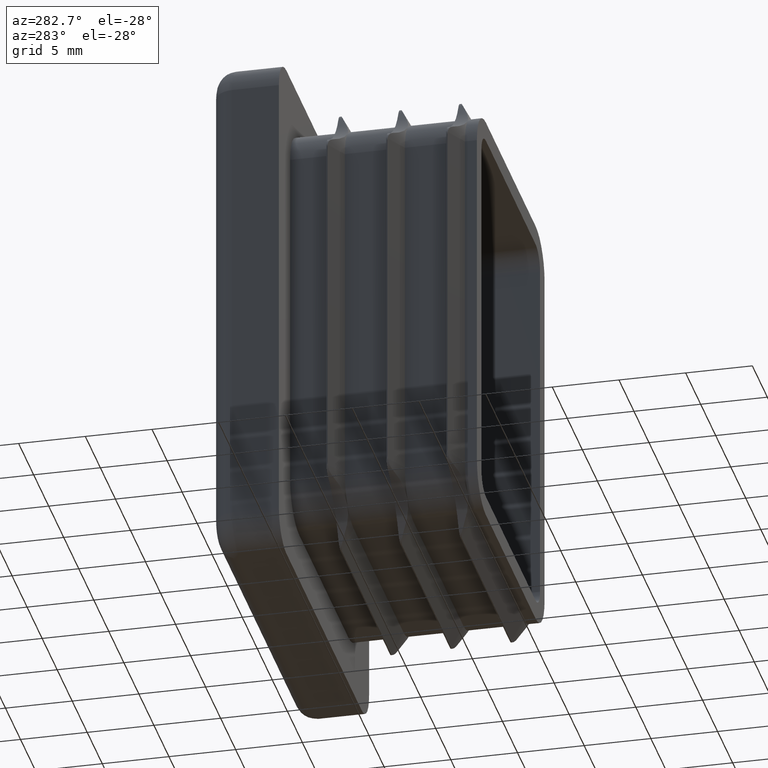
[diagram: clean part render]
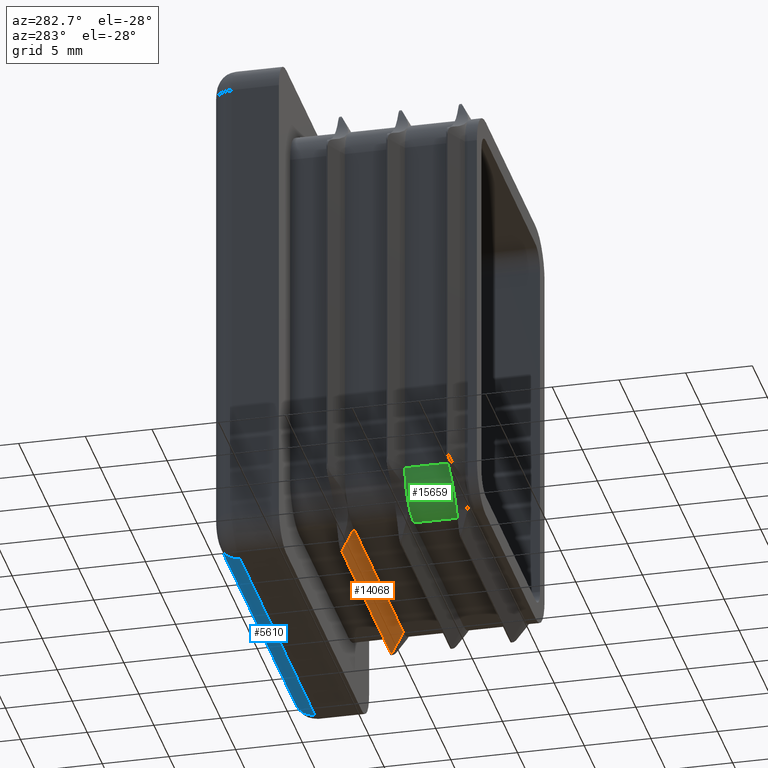
[diagram: same view with three faces highlighted in distinct colors, each labeled with its STEP entity id]
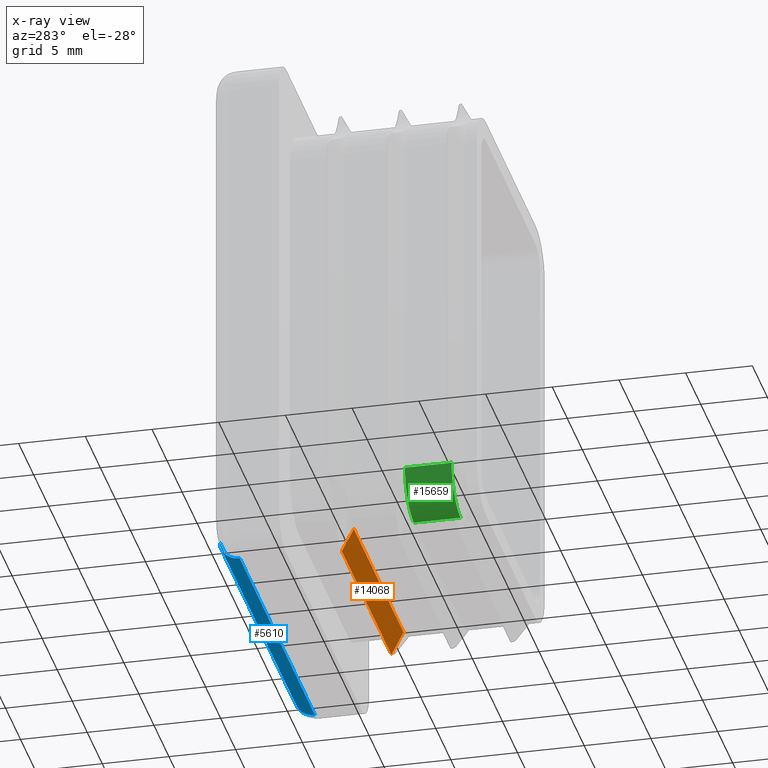
[diagram: x-ray of the same camera — body ghosted, the three highlighted faces saturated]
A machine part, auxiliary view with three faces highlighted in distinct colors.
The next image is the same camera in x-ray (body ghosted, the three faces saturated) — at least one of them is partly hidden behind the body in this view.
Their STEP definitions:

[orange] entity #14068 — the highlighted planar face has unit normal (0, 0.8852, 0.4652).
#296 = EDGE_CURVE ( 'NONE', #796, #19475, #1617, .T. ) ;
#754 = CARTESIAN_POINT ( 'NONE',  ( 8.250000000000003553, -4.100000000000000533, -16.24999999999999289 ) ) ;
#796 = VERTEX_POINT ( 'NONE', #10018 ) ;
#910 = DIRECTION ( 'NONE',  ( -1.000000000000000000, 0.000000000000000000, 0.000000000000000000 ) ) ;
#1617 = LINE ( 'NONE', #10877, #19602 ) ;
#1717 = LINE ( 'NONE', #7609, #19159 ) ;
#2319 = ORIENTED_EDGE ( 'NONE', *, *, #6359, .T. ) ;
#3541 = EDGE_CURVE ( 'NONE', #16539, #796, #1717, .T. ) ;
#3570 = VECTOR ( 'NONE', #15496, 1000.000000000000114 ) ;
#5968 = LINE ( 'NONE', #754, #21711 ) ;
#6359 = EDGE_CURVE ( 'NONE', #21801, #19475, #14787, .T. ) ;
#7219 = AXIS2_PLACEMENT_3D ( 'NONE', #19269, #10606, #19336 ) ;
#7609 = CARTESIAN_POINT ( 'NONE',  ( 8.250000000000003553, -3.194259021710857738, -17.97326239448548080 ) ) ;
#10018 = CARTESIAN_POINT ( 'NONE',  ( 8.250000000000003553, -3.194259021710856850, -17.97326239448548080 ) ) ;
#10325 = EDGE_CURVE ( 'NONE', #16539, #21801, #5968, .T. ) ;
#10548 = CARTESIAN_POINT ( 'NONE',  ( -8.249999999999992895, -4.100000000000000533, -16.24999999999999289 ) ) ;
#10606 = DIRECTION ( 'NONE',  ( 0.000000000000000000, 0.8851804342171145645, 0.4652478897095616572 ) ) ;
#10877 = CARTESIAN_POINT ( 'NONE',  ( 8.250000000000003553, -3.194259021710856850, -17.97326239448548080 ) ) ;
#12829 = CARTESIAN_POINT ( 'NONE',  ( -8.249999999999992895, -3.194259021710856850, -17.97326239448548080 ) ) ;
#13130 = ORIENTED_EDGE ( 'NONE', *, *, #10325, .T. ) ;
#13184 = EDGE_LOOP ( 'NONE', ( #22085, #18117, #13130, #2319 ) ) ;
#14068 = ADVANCED_FACE ( 'NONE', ( #19010 ), #15632, .F. ) ;
#14787 = LINE ( 'NONE', #15132, #3570 ) ;
#14918 = DIRECTION ( 'NONE',  ( -1.000000000000000000, 0.000000000000000000, 0.000000000000000000 ) ) ;
#15132 = CARTESIAN_POINT ( 'NONE',  ( -8.249999999999992895, -3.194259021710857738, -17.97326239448548080 ) ) ;
#15496 = DIRECTION ( 'NONE',  ( -2.897251471154287432E-16, 0.4652478897095616572, -0.8851804342171145645 ) ) ;
#15632 = PLANE ( 'NONE',  #7219 ) ;
#16539 = VERTEX_POINT ( 'NONE', #17673 ) ;
#17673 = CARTESIAN_POINT ( 'NONE',  ( 8.250000000000003553, -4.099999999999997868, -16.25000000000000000 ) ) ;
#18117 = ORIENTED_EDGE ( 'NONE', *, *, #3541, .F. ) ;
#19010 = FACE_OUTER_BOUND ( 'NONE', #13184, .T. ) ;
#19159 = VECTOR ( 'NONE', #21990, 1000.000000000000114 ) ;
#19269 = CARTESIAN_POINT ( 'NONE',  ( 8.250000000000003553, -3.194259021710857738, -17.97326239448548080 ) ) ;
#19336 = DIRECTION ( 'NONE',  ( 0.000000000000000000, -0.4652478897095616572, 0.8851804342171145645 ) ) ;
#19475 = VERTEX_POINT ( 'NONE', #12829 ) ;
#19602 = VECTOR ( 'NONE', #14918, 1000.000000000000000 ) ;
#21711 = VECTOR ( 'NONE', #910, 1000.000000000000000 ) ;
#21801 = VERTEX_POINT ( 'NONE', #10548 ) ;
#21990 = DIRECTION ( 'NONE',  ( -2.897251471154287432E-16, 0.4652478897095616572, -0.8851804342171145645 ) ) ;
#22085 = ORIENTED_EDGE ( 'NONE', *, *, #296, .F. ) ;

[blue] entity #5610 — the highlighted cylindrical surface (edge-blend (fillet) strip) has radius 1.5 mm, axis along (1, 0, 0).
#275 = DIRECTION ( 'NONE',  ( 0.000000000000000000, 0.000000000000000000, -1.000000000000000000 ) ) ;
#651 = EDGE_CURVE ( 'NONE', #7375, #3930, #12014, .T. ) ;
#853 = DIRECTION ( 'NONE',  ( -1.000000000000000000, 0.000000000000000000, 0.000000000000000000 ) ) ;
#1023 = AXIS2_PLACEMENT_3D ( 'NONE', #19678, #21355, #12792 ) ;
#1524 = EDGE_CURVE ( 'NONE', #8339, #3930, #18274, .T. ) ;
#3179 = ORIENTED_EDGE ( 'NONE', *, *, #19982, .F. ) ;
#3332 = CARTESIAN_POINT ( 'NONE',  ( 12.49999999999999289, 3.500000000000000000, -20.00000000000000355 ) ) ;
#3565 = LINE ( 'NONE', #20607, #4140 ) ;
#3590 = CIRCLE ( 'NONE', #19491, 1.500000000000001332 ) ;
#3930 = VERTEX_POINT ( 'NONE', #14220 ) ;
#4140 = VECTOR ( 'NONE', #15283, 1000.000000000000000 ) ;
#5610 = ADVANCED_FACE ( 'NONE', ( #10703 ), #16443, .T. ) ;
#7375 = VERTEX_POINT ( 'NONE', #12579 ) ;
#8088 = ORIENTED_EDGE ( 'NONE', *, *, #1524, .T. ) ;
#8339 = VERTEX_POINT ( 'NONE', #11618 ) ;
#8678 = AXIS2_PLACEMENT_3D ( 'NONE', #17307, #20779, #275 ) ;
#9759 = DIRECTION ( 'NONE',  ( 0.000000000000000000, 0.000000000000000000, -1.000000000000000000 ) ) ;
#10107 = VECTOR ( 'NONE', #853, 1000.000000000000000 ) ;
#10703 = FACE_OUTER_BOUND ( 'NONE', #21229, .T. ) ;
#11428 = CARTESIAN_POINT ( 'NONE',  ( 12.49999999999999289, 3.500000000000000000, -18.50000000000000355 ) ) ;
#11618 = CARTESIAN_POINT ( 'NONE',  ( -12.50000000000000178, 3.500000000000000000, -20.00000000000000355 ) ) ;
#12014 = LINE ( 'NONE', #21633, #10107 ) ;
#12579 = CARTESIAN_POINT ( 'NONE',  ( 12.49999999999999289, 5.000000000000000000, -18.50000000000000711 ) ) ;
#12792 = DIRECTION ( 'NONE',  ( 0.000000000000000000, 0.000000000000000000, -1.000000000000000000 ) ) ;
#13177 = DIRECTION ( 'NONE',  ( 1.000000000000000000, -0.000000000000000000, 0.000000000000000000 ) ) ;
#14220 = CARTESIAN_POINT ( 'NONE',  ( -12.50000000000000178, 5.000000000000000000, -18.50000000000000355 ) ) ;
#14639 = VERTEX_POINT ( 'NONE', #3332 ) ;
#15283 = DIRECTION ( 'NONE',  ( 1.000000000000000000, -0.000000000000000000, -0.000000000000000000 ) ) ;
#16443 = CYLINDRICAL_SURFACE ( 'NONE', #8678, 1.500000000000001332 ) ;
#17005 = ORIENTED_EDGE ( 'NONE', *, *, #20996, .F. ) ;
#17307 = CARTESIAN_POINT ( 'NONE',  ( 0.000000000000000000, 3.500000000000000000, -18.50000000000000355 ) ) ;
#18274 = CIRCLE ( 'NONE', #1023, 1.500000000000001332 ) ;
#18685 = ORIENTED_EDGE ( 'NONE', *, *, #651, .F. ) ;
#19491 = AXIS2_PLACEMENT_3D ( 'NONE', #11428, #13177, #9759 ) ;
#19678 = CARTESIAN_POINT ( 'NONE',  ( -12.50000000000000178, 3.500000000000000000, -18.50000000000000355 ) ) ;
#19982 = EDGE_CURVE ( 'NONE', #8339, #14639, #3565, .T. ) ;
#20607 = CARTESIAN_POINT ( 'NONE',  ( 12.49999999999999289, 3.500000000000000000, -20.00000000000000355 ) ) ;
#20779 = DIRECTION ( 'NONE',  ( 1.000000000000000000, 0.000000000000000000, 0.000000000000000000 ) ) ;
#20996 = EDGE_CURVE ( 'NONE', #14639, #7375, #3590, .T. ) ;
#21229 = EDGE_LOOP ( 'NONE', ( #8088, #18685, #17005, #3179 ) ) ;
#21355 = DIRECTION ( 'NONE',  ( 1.000000000000000000, 0.000000000000000000, 0.000000000000000000 ) ) ;
#21633 = CARTESIAN_POINT ( 'NONE',  ( -12.50000000000000178, 5.000000000000000000, -18.50000000000000355 ) ) ;

[green] entity #15659 — the highlighted cylindrical surface (partial cylindrical patch) has radius 3 mm, axis along (-0, 1, -0).
#55 = VECTOR ( 'NONE', #20944, 1000.000000000000000 ) ;
#71 = DIRECTION ( 'NONE',  ( 0.000000000000000000, 1.000000000000000000, 0.000000000000000000 ) ) ;
#2073 = AXIS2_PLACEMENT_3D ( 'NONE', #12360, #71, #19049 ) ;
#2372 = DIRECTION ( 'NONE',  ( -0.000000000000000000, 1.000000000000000000, -0.000000000000000000 ) ) ;
#2763 = LINE ( 'NONE', #3901, #5773 ) ;
#3008 = DIRECTION ( 'NONE',  ( 0.000000000000000000, 1.000000000000000000, 0.000000000000000000 ) ) ;
#3143 = DIRECTION ( 'NONE',  ( 0.000000000000000000, 0.000000000000000000, -1.000000000000000000 ) ) ;
#3790 = CIRCLE ( 'NONE', #8846, 3.000000000000040856 ) ;
#3901 = CARTESIAN_POINT ( 'NONE',  ( -11.24999999999999645, -14.00000000000000000, -13.25000000000000533 ) ) ;
#4015 = CARTESIAN_POINT ( 'NONE',  ( -8.249999999999994671, -14.00000000000000000, -13.25000000000000178 ) ) ;
#4172 = VERTEX_POINT ( 'NONE', #18264 ) ;
#4331 = ORIENTED_EDGE ( 'NONE', *, *, #7904, .F. ) ;
#4608 = AXIS2_PLACEMENT_3D ( 'NONE', #17236, #8352, #3143 ) ;
#4726 = VERTEX_POINT ( 'NONE', #19838 ) ;
#4954 = LINE ( 'NONE', #20576, #55 ) ;
#5378 = FACE_OUTER_BOUND ( 'NONE', #9181, .T. ) ;
#5773 = VECTOR ( 'NONE', #2372, 1000.000000000000000 ) ;
#6978 = AXIS2_PLACEMENT_3D ( 'NONE', #12605, #12696, #17871 ) ;
#7270 = VERTEX_POINT ( 'NONE', #10023 ) ;
#7383 = AXIS2_PLACEMENT_3D ( 'NONE', #4015, #17654, #12477 ) ;
#7904 = EDGE_CURVE ( 'NONE', #10443, #16292, #3790, .T. ) ;
#8352 = DIRECTION ( 'NONE',  ( 0.000000000000000000, 1.000000000000000000, 0.000000000000000000 ) ) ;
#8366 = ORIENTED_EDGE ( 'NONE', *, *, #17549, .F. ) ;
#8846 = AXIS2_PLACEMENT_3D ( 'NONE', #15345, #3008, #15207 ) ;
#9181 = EDGE_LOOP ( 'NONE', ( #8366, #4331, #21620, #21056, #17893, #12862 ) ) ;
#10023 = CARTESIAN_POINT ( 'NONE',  ( -11.24999999999999645, -8.600000000000020961, -13.25000000000000533 ) ) ;
#10443 = VERTEX_POINT ( 'NONE', #10654 ) ;
#10654 = CARTESIAN_POINT ( 'NONE',  ( -8.249999999999994671, -8.600000000000020961, -16.25000000000000000 ) ) ;
#11125 = VERTEX_POINT ( 'NONE', #21361 ) ;
#11460 = EDGE_CURVE ( 'NONE', #11125, #4172, #18466, .T. ) ;
#12360 = CARTESIAN_POINT ( 'NONE',  ( -8.249999999999992895, -12.10000000000000142, -13.25000000000000178 ) ) ;
#12477 = DIRECTION ( 'NONE',  ( 0.000000000000000000, 0.000000000000000000, 1.000000000000000000 ) ) ;
#12605 = CARTESIAN_POINT ( 'NONE',  ( -8.249999999999992895, -12.10000000000000142, -13.25000000000000178 ) ) ;
#12696 = DIRECTION ( 'NONE',  ( 0.000000000000000000, 1.000000000000000000, 0.000000000000000000 ) ) ;
#12862 = ORIENTED_EDGE ( 'NONE', *, *, #21967, .T. ) ;
#13296 = CARTESIAN_POINT ( 'NONE',  ( -10.37132034355964194, -8.600000000000017408, -15.37132034355964727 ) ) ;
#14098 = CYLINDRICAL_SURFACE ( 'NONE', #7383, 2.999999999999999112 ) ;
#14119 = EDGE_CURVE ( 'NONE', #4726, #11125, #18497, .T. ) ;
#15207 = DIRECTION ( 'NONE',  ( 0.000000000000000000, 0.000000000000000000, -1.000000000000000000 ) ) ;
#15345 = CARTESIAN_POINT ( 'NONE',  ( -8.249999999999992895, -8.599999999999999645, -13.25000000000000178 ) ) ;
#15659 = ADVANCED_FACE ( 'NONE', ( #5378 ), #14098, .T. ) ;
#16292 = VERTEX_POINT ( 'NONE', #13296 ) ;
#17236 = CARTESIAN_POINT ( 'NONE',  ( -8.249999999999992895, -8.599999999999999645, -13.25000000000000178 ) ) ;
#17549 = EDGE_CURVE ( 'NONE', #16292, #7270, #17586, .T. ) ;
#17586 = CIRCLE ( 'NONE', #4608, 3.000000000000040856 ) ;
#17654 = DIRECTION ( 'NONE',  ( -0.000000000000000000, 1.000000000000000000, -0.000000000000000000 ) ) ;
#17871 = DIRECTION ( 'NONE',  ( 0.000000000000000000, 0.000000000000000000, -1.000000000000000000 ) ) ;
#17893 = ORIENTED_EDGE ( 'NONE', *, *, #11460, .T. ) ;
#18264 = CARTESIAN_POINT ( 'NONE',  ( -11.24999999999999645, -12.10000000000000142, -13.25000000000000533 ) ) ;
#18466 = CIRCLE ( 'NONE', #6978, 3.000000000000089262 ) ;
#18497 = CIRCLE ( 'NONE', #2073, 3.000000000000089262 ) ;
#19049 = DIRECTION ( 'NONE',  ( 0.000000000000000000, 0.000000000000000000, -1.000000000000000000 ) ) ;
#19838 = CARTESIAN_POINT ( 'NONE',  ( -8.249999999999994671, -12.10000000000000142, -16.25000000000000000 ) ) ;
#20471 = EDGE_CURVE ( 'NONE', #4726, #10443, #4954, .T. ) ;
#20576 = CARTESIAN_POINT ( 'NONE',  ( -8.249999999999994671, -14.00000000000000000, -16.25000000000000000 ) ) ;
#20944 = DIRECTION ( 'NONE',  ( -0.000000000000000000, 1.000000000000000000, -0.000000000000000000 ) ) ;
#21056 = ORIENTED_EDGE ( 'NONE', *, *, #14119, .T. ) ;
#21361 = CARTESIAN_POINT ( 'NONE',  ( -10.37132034355969878, -12.10000000000000142, -15.37132034355970589 ) ) ;
#21620 = ORIENTED_EDGE ( 'NONE', *, *, #20471, .F. ) ;
#21967 = EDGE_CURVE ( 'NONE', #4172, #7270, #2763, .T. ) ;